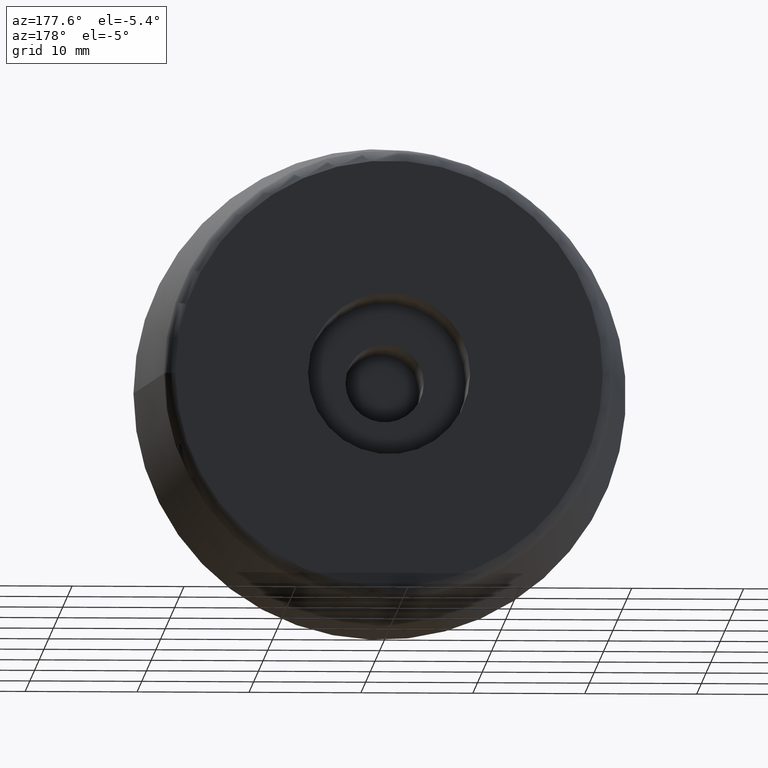
[diagram: clean part render]
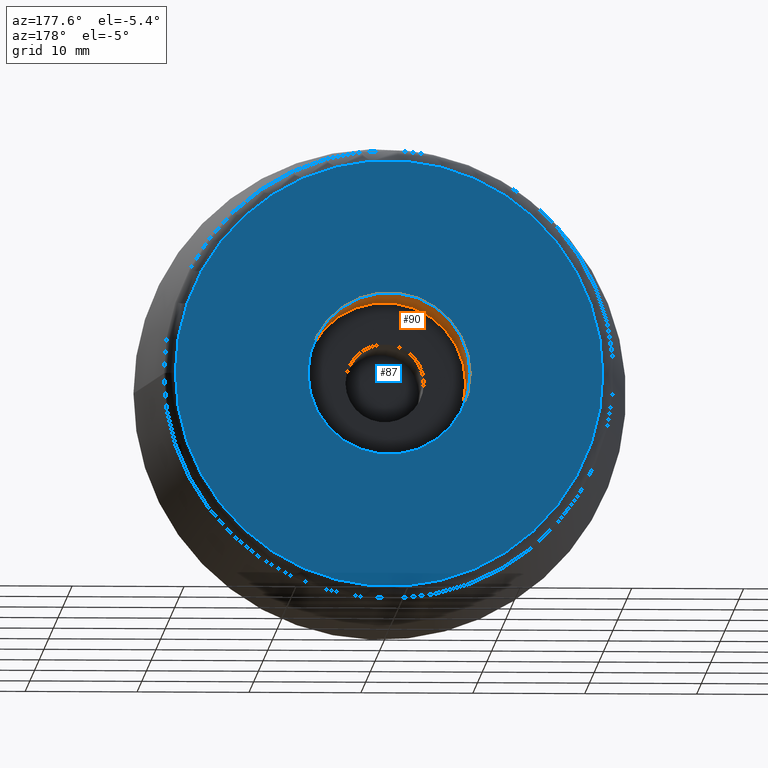
[diagram: same view with the hole feature highlighted: cylindrical wall and planar end face, labeled with their STEP entity ids]
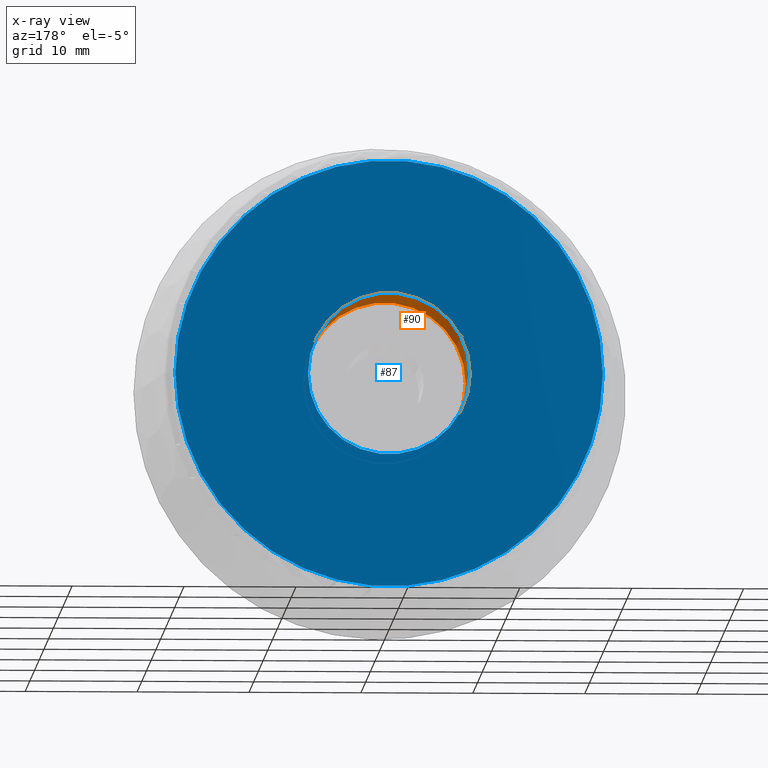
[diagram: x-ray of the same camera — body ghosted, the hole faces saturated]
A machine part, auxiliary view. The highlighted faces form one hole feature of diameter 14.5 mm: the cylindrical wall (entity #90, orange) and its adjacent planar end face (entity #87, blue) — they share a circular edge in the B-rep.
The next image is the same camera in x-ray (body ghosted, the hole faces saturated) — the bore reads through the body.
Wall:
#15=CYLINDRICAL_SURFACE('',#106,7.25);
#26=FACE_BOUND('',#45,.T.);
#32=FACE_OUTER_BOUND('',#44,.T.);
#44=EDGE_LOOP('',(#79));
#45=EDGE_LOOP('',(#80));
#52=CIRCLE('',#100,7.25);
#54=CIRCLE('',#104,7.25);
#59=VERTEX_POINT('',#150);
#61=VERTEX_POINT('',#156);
#66=EDGE_CURVE('',#59,#59,#52,.T.);
#68=EDGE_CURVE('',#61,#61,#54,.T.);
#79=ORIENTED_EDGE('',*,*,#66,.F.);
#80=ORIENTED_EDGE('',*,*,#68,.F.);
#90=ADVANCED_FACE('',(#32,#26),#15,.F.);
#100=AXIS2_PLACEMENT_3D('',#151,#121,#122);
#104=AXIS2_PLACEMENT_3D('',#157,#129,#130);
#106=AXIS2_PLACEMENT_3D('',#160,#133,#134);
#121=DIRECTION('center_axis',(0.,-1.,0.));
#122=DIRECTION('ref_axis',(-1.,0.,0.));
#129=DIRECTION('center_axis',(0.,1.,0.));
#130=DIRECTION('ref_axis',(-1.,0.,0.));
#133=DIRECTION('center_axis',(0.,1.,0.));
#134=DIRECTION('ref_axis',(-1.,0.,0.));
#150=CARTESIAN_POINT('',(-7.25,20.,0.));
#151=CARTESIAN_POINT('Origin',(0.,20.,0.));
#156=CARTESIAN_POINT('',(-7.25,10.5,0.));
#157=CARTESIAN_POINT('Origin',(0.,10.5,0.));
#160=CARTESIAN_POINT('Origin',(0.,15.25,0.));
End face:
#18=PLANE('',#99);
#23=FACE_BOUND('',#39,.T.);
#29=FACE_OUTER_BOUND('',#38,.T.);
#38=EDGE_LOOP('',(#73));
#39=EDGE_LOOP('',(#74));
#50=CIRCLE('',#97,19.0950124378879);
#52=CIRCLE('',#100,7.25);
#57=VERTEX_POINT('',#145);
#59=VERTEX_POINT('',#150);
#64=EDGE_CURVE('',#57,#57,#50,.T.);
#66=EDGE_CURVE('',#59,#59,#52,.T.);
#73=ORIENTED_EDGE('',*,*,#64,.F.);
#74=ORIENTED_EDGE('',*,*,#66,.T.);
#87=ADVANCED_FACE('',(#29,#23),#18,.F.);
#97=AXIS2_PLACEMENT_3D('',#146,#115,#116);
#99=AXIS2_PLACEMENT_3D('',#149,#119,#120);
#100=AXIS2_PLACEMENT_3D('',#151,#121,#122);
#115=DIRECTION('center_axis',(0.,-1.,0.));
#116=DIRECTION('ref_axis',(-1.,0.,1.22464679914735E-16));
#119=DIRECTION('center_axis',(0.,-1.,0.));
#120=DIRECTION('ref_axis',(0.,0.,-1.));
#121=DIRECTION('center_axis',(0.,-1.,0.));
#122=DIRECTION('ref_axis',(-1.,0.,0.));
#145=CARTESIAN_POINT('',(19.0950124378879,20.,0.));
#146=CARTESIAN_POINT('Origin',(0.,20.,0.));
#149=CARTESIAN_POINT('Origin',(0.,20.,0.));
#150=CARTESIAN_POINT('',(-7.25,20.,0.));
#151=CARTESIAN_POINT('Origin',(0.,20.,0.));